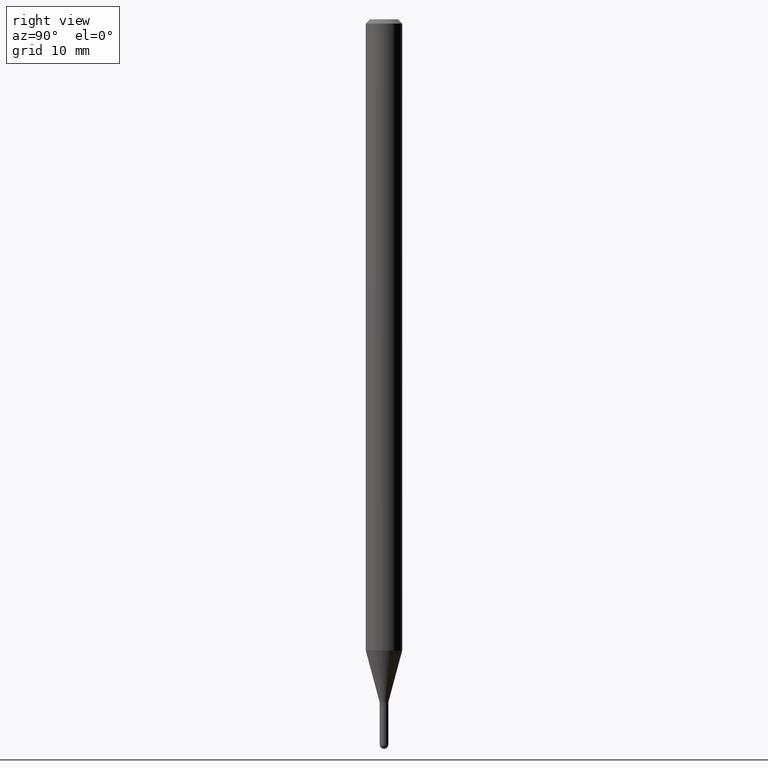
[diagram: clean part render]
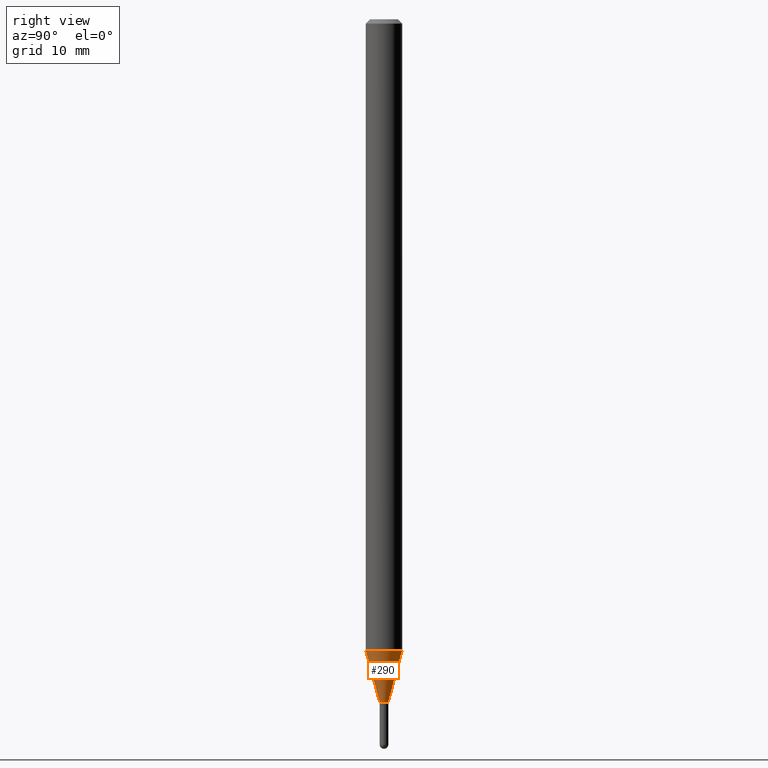
[diagram: same view with one face highlighted and labeled with its STEP entity id]
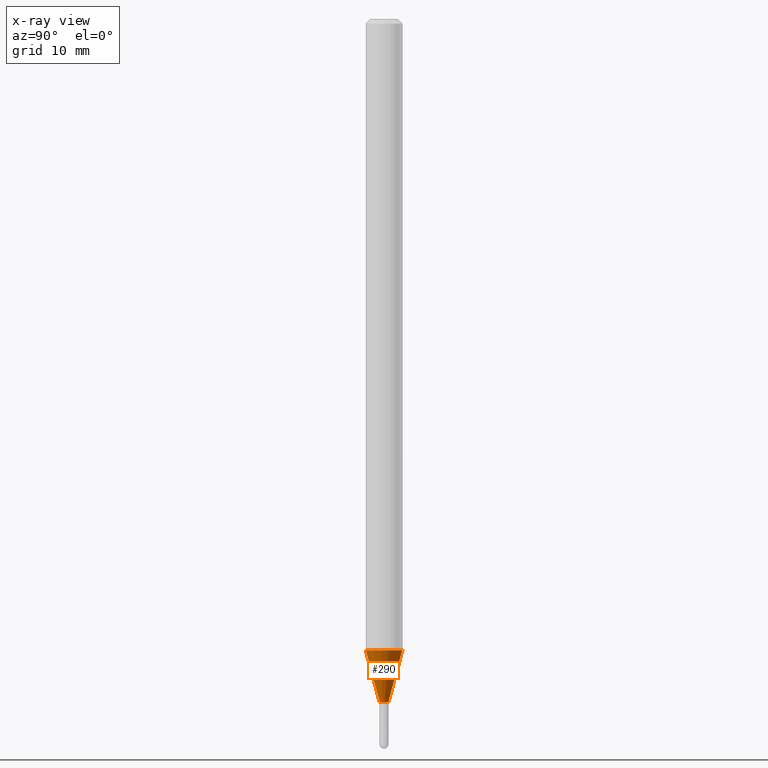
[diagram: x-ray of the same camera — body ghosted, the highlighted face saturated]
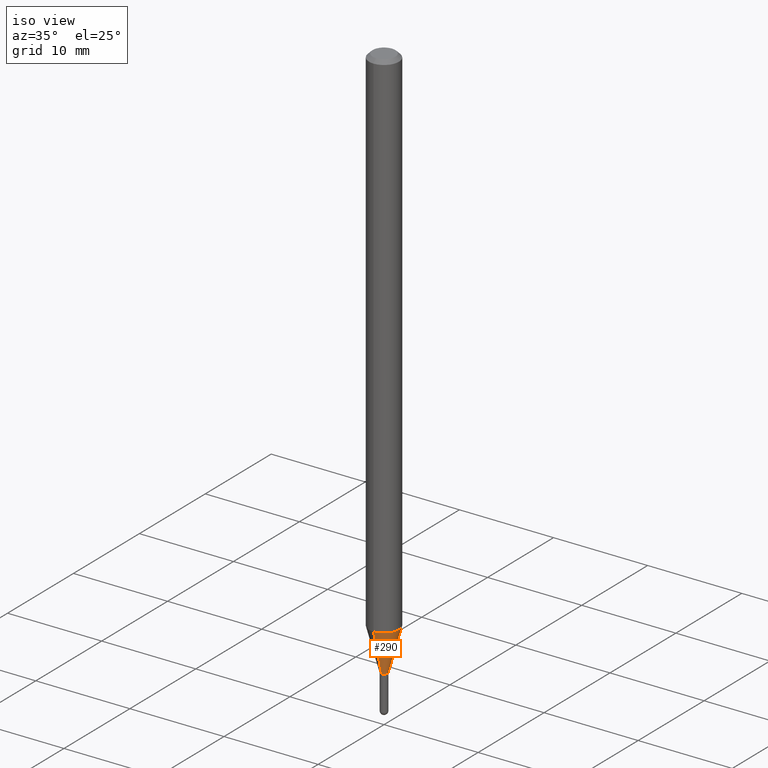
[diagram: same view with one face highlighted and labeled with its STEP entity id]
A machine part, right view. The second image highlights one B-rep face of the part: STEP entity #290.
The next image is the same camera in x-ray: the body ghosted, the highlighted face saturated — about 0% of this face is hidden behind the body in this view.
A second angle (iso view) of the same face is appended — the face is thin or edge-on in the first view.
In plain terms, the highlighted conical surface has half-angle 15 deg.
Its self-contained STEP definition (entity closure, byte-faithful):
#46 = ORIENTED_EDGE ( 'NONE', *, *, #127, .T. ) ;
#48 = DIRECTION ( 'NONE',  ( -1.807323732225331717E-15, -0.2588190451025184080, 0.9659258262890689783 ) ) ;
#51 = VECTOR ( 'NONE', #48, 39.37007874015748854 ) ;
#59 = DIRECTION ( 'NONE',  ( -6.982962677686265922E-15, -1.000000000000000000, 4.370956789862821150E-15 ) ) ;
#78 = AXIS2_PLACEMENT_3D ( 'NONE', #196, #319, #86 ) ;
#86 = DIRECTION ( 'NONE',  ( -6.982962677686265133E-15, -1.000000000000000000, 0.000000000000000000 ) ) ;
#102 = LINE ( 'NONE', #252, #435 ) ;
#108 = ORIENTED_EDGE ( 'NONE', *, *, #462, .F. ) ;
#115 = VERTEX_POINT ( 'NONE', #220 ) ;
#127 = EDGE_CURVE ( 'NONE', #115, #407, #165, .T. ) ;
#128 = CARTESIAN_POINT ( 'NONE',  ( 4.440892098501152726E-16, 0.06249999999999242967, -2.162727586640479593 ) ) ;
#151 = DIRECTION ( 'NONE',  ( -6.982962677686265133E-15, -1.000000000000000000, 0.000000000000000000 ) ) ;
#165 = CIRCLE ( 'NONE', #232, 0.01500000000000019894 ) ;
#192 = CONICAL_SURFACE ( 'NONE', #78, 0.01500000000000019894, 0.2617993877991505181 ) ;
#193 = DIRECTION ( 'NONE',  ( -2.445393450716331535E-29, 3.491589252163441310E-15, 1.000000000000000000 ) ) ;
#196 = CARTESIAN_POINT ( 'NONE',  ( 5.722220674676214346E-29, -8.170318850062451766E-15, -2.339999999999999414 ) ) ;
#204 = LINE ( 'NONE', #364, #51 ) ;
#220 = CARTESIAN_POINT ( 'NONE',  ( -1.047444401652381493E-16, -0.01500000000000836775, -2.339999999999999414 ) ) ;
#231 = CARTESIAN_POINT ( 'NONE',  ( 5.722220674676214346E-29, -8.170318850062451766E-15, -2.339999999999999414 ) ) ;
#232 = AXIS2_PLACEMENT_3D ( 'NONE', #231, #193, #151 ) ;
#252 = CARTESIAN_POINT ( 'NONE',  ( 1.065814103640736462E-16, 0.01499999999999202839, -2.339999999999999414 ) ) ;
#290 = ADVANCED_FACE ( 'NONE', ( #399 ), #192, .T. ) ;
#312 = EDGE_CURVE ( 'NONE', #115, #405, #204, .T. ) ;
#319 = DIRECTION ( 'NONE',  ( -2.445393450716331535E-29, 3.491589252163441310E-15, 1.000000000000000000 ) ) ;
#321 = CARTESIAN_POINT ( 'NONE',  ( -4.364351673553388650E-16, -0.06250000000000757727, -2.162727586640479149 ) ) ;
#339 = VERTEX_POINT ( 'NONE', #128 ) ;
#364 = CARTESIAN_POINT ( 'NONE',  ( -1.047444401652381493E-16, -0.01500000000000836775, -2.339999999999999414 ) ) ;
#369 = AXIS2_PLACEMENT_3D ( 'NONE', #416, #454, #59 ) ;
#370 = DIRECTION ( 'NONE',  ( 1.839019923739601893E-15, 0.2588190451025252359, 0.9659258262890670910 ) ) ;
#378 = CIRCLE ( 'NONE', #369, 0.06250000000000000000 ) ;
#391 = ORIENTED_EDGE ( 'NONE', *, *, #312, .F. ) ;
#399 = FACE_OUTER_BOUND ( 'NONE', #421, .T. ) ;
#405 = VERTEX_POINT ( 'NONE', #321 ) ;
#407 = VERTEX_POINT ( 'NONE', #481 ) ;
#416 = CARTESIAN_POINT ( 'NONE',  ( 5.288719876054166459E-29, -7.551356396871277029E-15, -2.162727586640479593 ) ) ;
#421 = EDGE_LOOP ( 'NONE', ( #46, #443, #108, #391 ) ) ;
#435 = VECTOR ( 'NONE', #370, 39.37007874015748854 ) ;
#443 = ORIENTED_EDGE ( 'NONE', *, *, #489, .T. ) ;
#454 = DIRECTION ( 'NONE',  ( -2.445393450716331535E-29, 3.491589252163441310E-15, 1.000000000000000000 ) ) ;
#462 = EDGE_CURVE ( 'NONE', #405, #339, #378, .T. ) ;
#481 = CARTESIAN_POINT ( 'NONE',  ( 2.753353101070947306E-16, 0.01499999999999203013, -2.339999999999999414 ) ) ;
#489 = EDGE_CURVE ( 'NONE', #407, #339, #102, .T. ) ;